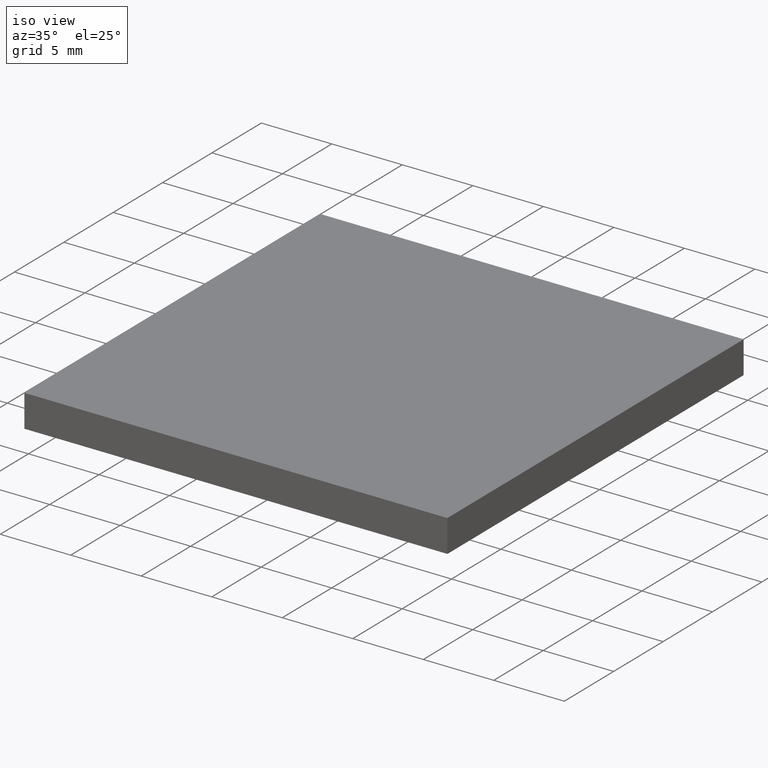
[diagram: clean part render]
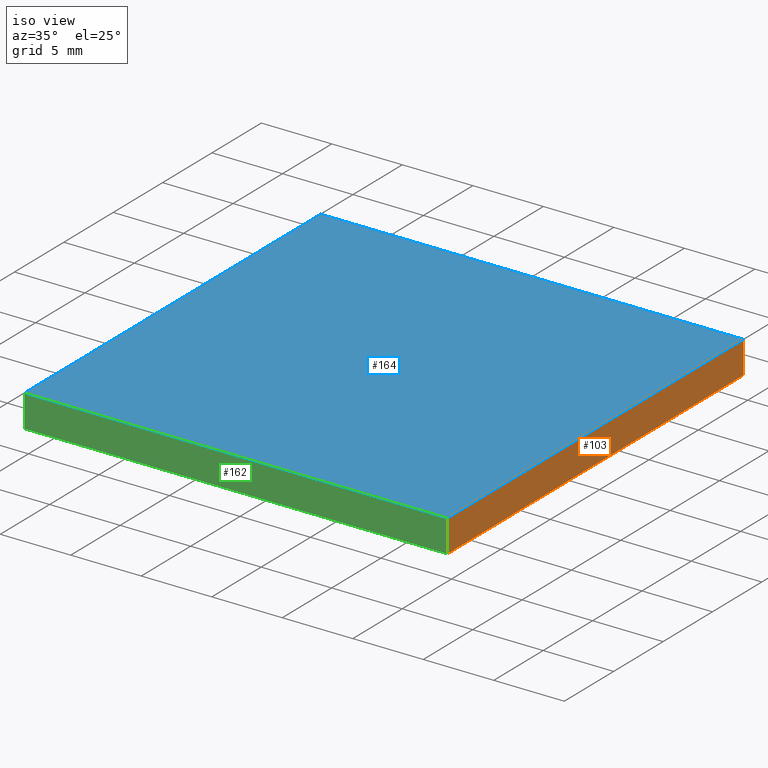
[diagram: same view with three faces highlighted in distinct colors, each labeled with its STEP entity id]
A machine part, iso view with three faces highlighted in distinct colors.
Their STEP definitions:

[orange] entity #103 — the highlighted planar face has unit normal (-1, -0, 0).
#3 = FACE_OUTER_BOUND ( 'NONE', #202, .T. ) ;
#10 = VECTOR ( 'NONE', #88, 1000.000000000000000 ) ;
#17 = EDGE_CURVE ( 'NONE', #188, #128, #82, .T. ) ;
#22 = EDGE_CURVE ( 'NONE', #37, #188, #41, .T. ) ;
#25 = DIRECTION ( 'NONE',  ( -1.000000000000000000, -4.625929269271483900E-016, 0.0000000000000000000 ) ) ;
#29 = EDGE_CURVE ( 'NONE', #37, #160, #183, .T. ) ;
#30 = ORIENTED_EDGE ( 'NONE', *, *, #100, .T. ) ;
#37 = VERTEX_POINT ( 'NONE', #198 ) ;
#41 = LINE ( 'NONE', #176, #94 ) ;
#42 = DIRECTION ( 'NONE',  ( 4.625929269271483900E-016, -1.000000000000000000, 0.0000000000000000000 ) ) ;
#43 = CARTESIAN_POINT ( 'NONE',  ( 123.6149839422836900, 76.56324183452660700, 2.299999999999999800 ) ) ;
#44 = CARTESIAN_POINT ( 'NONE',  ( 123.6149839422836900, 46.56324183452659300, 2.299999999999999800 ) ) ;
#45 = DIRECTION ( 'NONE',  ( -4.625929269271483900E-016, 1.000000000000000000, -0.0000000000000000000 ) ) ;
#51 = ORIENTED_EDGE ( 'NONE', *, *, #17, .F. ) ;
#52 = ORIENTED_EDGE ( 'NONE', *, *, #29, .T. ) ;
#53 = DIRECTION ( 'NONE',  ( -0.0000000000000000000, -0.0000000000000000000, -1.000000000000000000 ) ) ;
#80 = LINE ( 'NONE', #122, #83 ) ;
#82 = LINE ( 'NONE', #174, #10 ) ;
#83 = VECTOR ( 'NONE', #45, 1000.000000000000000 ) ;
#85 = DIRECTION ( 'NONE',  ( -4.625929269271483900E-016, 1.000000000000000000, -0.0000000000000000000 ) ) ;
#88 = DIRECTION ( 'NONE',  ( -0.0000000000000000000, -0.0000000000000000000, -1.000000000000000000 ) ) ;
#94 = VECTOR ( 'NONE', #85, 1000.000000000000000 ) ;
#100 = EDGE_CURVE ( 'NONE', #160, #128, #80, .T. ) ;
#103 = ADVANCED_FACE ( 'NONE', ( #3 ), #133, .F. ) ;
#111 = AXIS2_PLACEMENT_3D ( 'NONE', #43, #25, #42 ) ;
#122 = CARTESIAN_POINT ( 'NONE',  ( 123.6149839422836900, 76.56324183452660700, 0.0000000000000000000 ) ) ;
#128 = VERTEX_POINT ( 'NONE', #151 ) ;
#133 = PLANE ( 'NONE',  #111 ) ;
#151 = CARTESIAN_POINT ( 'NONE',  ( 123.6149839422836900, 76.56324183452660700, 0.0000000000000000000 ) ) ;
#153 = VECTOR ( 'NONE', #53, 1000.000000000000000 ) ;
#160 = VERTEX_POINT ( 'NONE', #182 ) ;
#171 = ORIENTED_EDGE ( 'NONE', *, *, #22, .F. ) ;
#174 = CARTESIAN_POINT ( 'NONE',  ( 123.6149839422836900, 76.56324183452660700, 2.299999999999999800 ) ) ;
#176 = CARTESIAN_POINT ( 'NONE',  ( 123.6149839422836900, 76.56324183452660700, 2.299999999999999800 ) ) ;
#179 = CARTESIAN_POINT ( 'NONE',  ( 123.6149839422836900, 76.56324183452660700, 2.299999999999999800 ) ) ;
#182 = CARTESIAN_POINT ( 'NONE',  ( 123.6149839422836900, 46.56324183452659300, 0.0000000000000000000 ) ) ;
#183 = LINE ( 'NONE', #44, #153 ) ;
#188 = VERTEX_POINT ( 'NONE', #179 ) ;
#198 = CARTESIAN_POINT ( 'NONE',  ( 123.6149839422836900, 46.56324183452659300, 2.299999999999999800 ) ) ;
#202 = EDGE_LOOP ( 'NONE', ( #30, #51, #171, #52 ) ) ;

[blue] entity #164 — the highlighted planar face has unit normal (-0, 0, 1).
#12 = CARTESIAN_POINT ( 'NONE',  ( 93.61498394228370000, 46.56324183452659300, 2.299999999999999800 ) ) ;
#14 = CARTESIAN_POINT ( 'NONE',  ( 0.0000000000000000000, 0.0000000000000000000, 2.299999999999999800 ) ) ;
#19 = DIRECTION ( 'NONE',  ( -1.000000000000000000, -4.625929269271485900E-016, -0.0000000000000000000 ) ) ;
#22 = EDGE_CURVE ( 'NONE', #37, #188, #41, .T. ) ;
#37 = VERTEX_POINT ( 'NONE', #198 ) ;
#38 = VECTOR ( 'NONE', #59, 1000.000000000000000 ) ;
#41 = LINE ( 'NONE', #176, #94 ) ;
#46 = LINE ( 'NONE', #48, #38 ) ;
#47 = CARTESIAN_POINT ( 'NONE',  ( 93.61498394228368600, 76.56324183452659300, 2.299999999999999800 ) ) ;
#48 = CARTESIAN_POINT ( 'NONE',  ( 93.61498394228368600, 76.56324183452659300, 2.299999999999999800 ) ) ;
#50 = AXIS2_PLACEMENT_3D ( 'NONE', #14, #146, #166 ) ;
#55 = DIRECTION ( 'NONE',  ( 1.000000000000000000, 0.0000000000000000000, 0.0000000000000000000 ) ) ;
#59 = DIRECTION ( 'NONE',  ( 4.625929269271485900E-016, -1.000000000000000000, 0.0000000000000000000 ) ) ;
#63 = EDGE_CURVE ( 'NONE', #170, #37, #140, .T. ) ;
#65 = ORIENTED_EDGE ( 'NONE', *, *, #22, .T. ) ;
#66 = EDGE_CURVE ( 'NONE', #188, #123, #114, .T. ) ;
#73 = CARTESIAN_POINT ( 'NONE',  ( 93.61498394228370000, 46.56324183452659300, 2.299999999999999800 ) ) ;
#85 = DIRECTION ( 'NONE',  ( -4.625929269271483900E-016, 1.000000000000000000, -0.0000000000000000000 ) ) ;
#90 = CARTESIAN_POINT ( 'NONE',  ( 93.61498394228368600, 76.56324183452659300, 2.299999999999999800 ) ) ;
#92 = ORIENTED_EDGE ( 'NONE', *, *, #63, .T. ) ;
#94 = VECTOR ( 'NONE', #85, 1000.000000000000000 ) ;
#96 = EDGE_CURVE ( 'NONE', #123, #170, #46, .T. ) ;
#99 = VECTOR ( 'NONE', #19, 1000.000000000000000 ) ;
#112 = EDGE_LOOP ( 'NONE', ( #154, #92, #65, #115 ) ) ;
#114 = LINE ( 'NONE', #90, #99 ) ;
#115 = ORIENTED_EDGE ( 'NONE', *, *, #66, .T. ) ;
#123 = VERTEX_POINT ( 'NONE', #47 ) ;
#140 = LINE ( 'NONE', #12, #195 ) ;
#146 = DIRECTION ( 'NONE',  ( -0.0000000000000000000, 0.0000000000000000000, 1.000000000000000000 ) ) ;
#154 = ORIENTED_EDGE ( 'NONE', *, *, #96, .T. ) ;
#161 = PLANE ( 'NONE',  #50 ) ;
#164 = ADVANCED_FACE ( 'NONE', ( #194 ), #161, .T. ) ;
#166 = DIRECTION ( 'NONE',  ( 1.000000000000000000, 0.0000000000000000000, 0.0000000000000000000 ) ) ;
#170 = VERTEX_POINT ( 'NONE', #73 ) ;
#176 = CARTESIAN_POINT ( 'NONE',  ( 123.6149839422836900, 76.56324183452660700, 2.299999999999999800 ) ) ;
#179 = CARTESIAN_POINT ( 'NONE',  ( 123.6149839422836900, 76.56324183452660700, 2.299999999999999800 ) ) ;
#188 = VERTEX_POINT ( 'NONE', #179 ) ;
#194 = FACE_OUTER_BOUND ( 'NONE', #112, .T. ) ;
#195 = VECTOR ( 'NONE', #55, 1000.000000000000000 ) ;
#198 = CARTESIAN_POINT ( 'NONE',  ( 123.6149839422836900, 46.56324183452659300, 2.299999999999999800 ) ) ;

[green] entity #162 — the highlighted planar face has unit normal (0, 1, 0).
#6 = EDGE_CURVE ( 'NONE', #91, #160, #127, .T. ) ;
#12 = CARTESIAN_POINT ( 'NONE',  ( 93.61498394228370000, 46.56324183452659300, 2.299999999999999800 ) ) ;
#13 = DIRECTION ( 'NONE',  ( 0.0000000000000000000, 1.000000000000000000, 0.0000000000000000000 ) ) ;
#16 = CARTESIAN_POINT ( 'NONE',  ( 93.61498394228370000, 46.56324183452659300, 0.0000000000000000000 ) ) ;
#29 = EDGE_CURVE ( 'NONE', #37, #160, #183, .T. ) ;
#34 = FACE_OUTER_BOUND ( 'NONE', #178, .T. ) ;
#37 = VERTEX_POINT ( 'NONE', #198 ) ;
#44 = CARTESIAN_POINT ( 'NONE',  ( 123.6149839422836900, 46.56324183452659300, 2.299999999999999800 ) ) ;
#53 = DIRECTION ( 'NONE',  ( -0.0000000000000000000, -0.0000000000000000000, -1.000000000000000000 ) ) ;
#54 = PLANE ( 'NONE',  #200 ) ;
#55 = DIRECTION ( 'NONE',  ( 1.000000000000000000, 0.0000000000000000000, 0.0000000000000000000 ) ) ;
#58 = DIRECTION ( 'NONE',  ( 0.0000000000000000000, -0.0000000000000000000, 1.000000000000000000 ) ) ;
#63 = EDGE_CURVE ( 'NONE', #170, #37, #140, .T. ) ;
#69 = ORIENTED_EDGE ( 'NONE', *, *, #29, .F. ) ;
#70 = CARTESIAN_POINT ( 'NONE',  ( 93.61498394228370000, 46.56324183452659300, 0.0000000000000000000 ) ) ;
#73 = CARTESIAN_POINT ( 'NONE',  ( 93.61498394228370000, 46.56324183452659300, 2.299999999999999800 ) ) ;
#91 = VERTEX_POINT ( 'NONE', #16 ) ;
#109 = ORIENTED_EDGE ( 'NONE', *, *, #6, .T. ) ;
#124 = ORIENTED_EDGE ( 'NONE', *, *, #63, .F. ) ;
#127 = LINE ( 'NONE', #70, #187 ) ;
#140 = LINE ( 'NONE', #12, #195 ) ;
#141 = ORIENTED_EDGE ( 'NONE', *, *, #193, .T. ) ;
#153 = VECTOR ( 'NONE', #53, 1000.000000000000000 ) ;
#159 = DIRECTION ( 'NONE',  ( 1.000000000000000000, 0.0000000000000000000, 0.0000000000000000000 ) ) ;
#160 = VERTEX_POINT ( 'NONE', #182 ) ;
#162 = ADVANCED_FACE ( 'NONE', ( #34 ), #54, .F. ) ;
#163 = DIRECTION ( 'NONE',  ( -0.0000000000000000000, -0.0000000000000000000, -1.000000000000000000 ) ) ;
#170 = VERTEX_POINT ( 'NONE', #73 ) ;
#178 = EDGE_LOOP ( 'NONE', ( #109, #69, #124, #141 ) ) ;
#181 = CARTESIAN_POINT ( 'NONE',  ( 93.61498394228370000, 46.56324183452659300, 2.299999999999999800 ) ) ;
#182 = CARTESIAN_POINT ( 'NONE',  ( 123.6149839422836900, 46.56324183452659300, 0.0000000000000000000 ) ) ;
#183 = LINE ( 'NONE', #44, #153 ) ;
#187 = VECTOR ( 'NONE', #159, 1000.000000000000000 ) ;
#191 = LINE ( 'NONE', #201, #197 ) ;
#193 = EDGE_CURVE ( 'NONE', #170, #91, #191, .T. ) ;
#195 = VECTOR ( 'NONE', #55, 1000.000000000000000 ) ;
#197 = VECTOR ( 'NONE', #163, 1000.000000000000000 ) ;
#198 = CARTESIAN_POINT ( 'NONE',  ( 123.6149839422836900, 46.56324183452659300, 2.299999999999999800 ) ) ;
#200 = AXIS2_PLACEMENT_3D ( 'NONE', #181, #13, #58 ) ;
#201 = CARTESIAN_POINT ( 'NONE',  ( 93.61498394228370000, 46.56324183452659300, 2.299999999999999800 ) ) ;